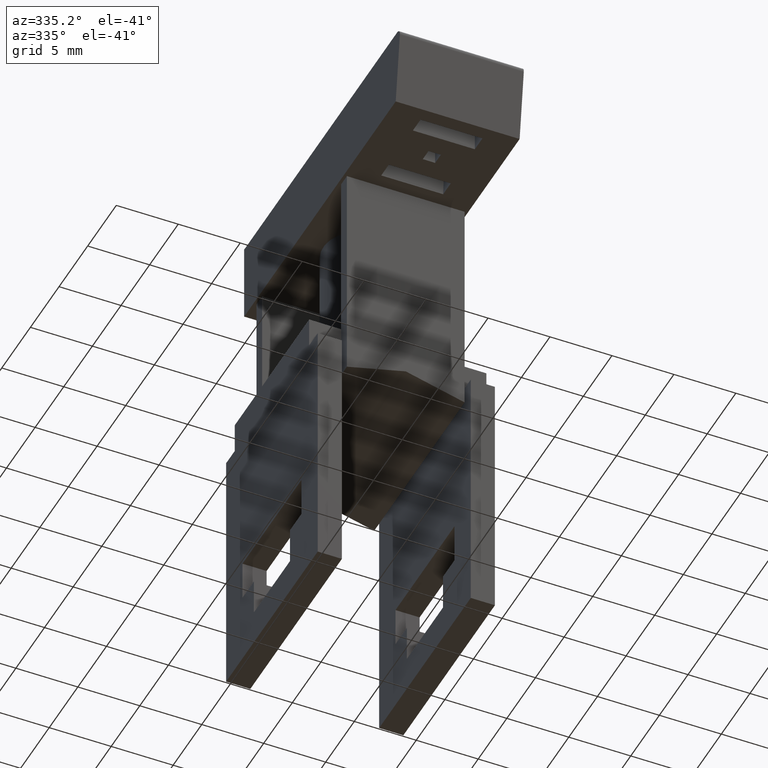
[diagram: clean part render]
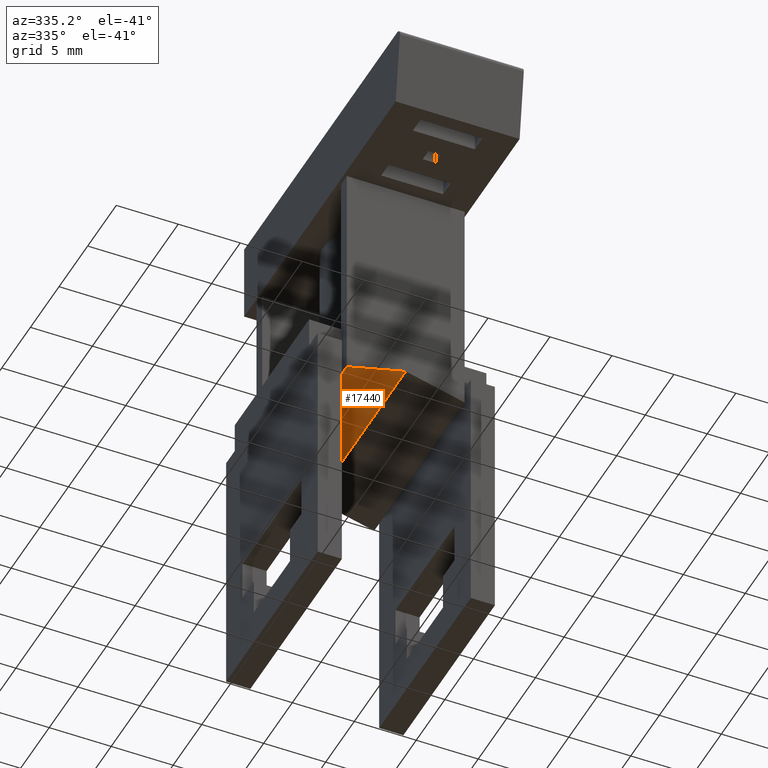
[diagram: same view with one face highlighted and labeled with its STEP entity id]
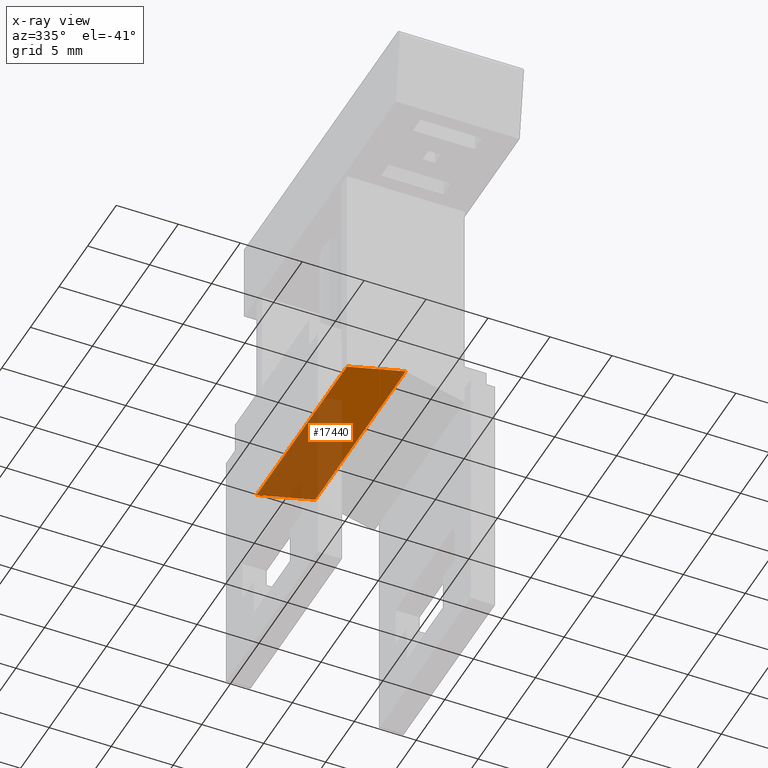
[diagram: x-ray of the same camera — body ghosted, the highlighted face saturated]
A machine part, auxiliary view. The second image highlights one B-rep face of the part: STEP entity #17440.
The next image is the same camera in x-ray: the body ghosted, the highlighted face saturated — about 59% of this face is hidden behind the body in this view.
In plain terms, the highlighted planar face has unit normal (-0.2588, 0, 0.9659).
Its self-contained STEP definition (entity closure, byte-faithful):
#14580=CARTESIAN_POINT('',(-26.7056108469937,-5.02724133595218,7.9));
#14590=VERTEX_POINT('',#14580);
#14620=CARTESIAN_POINT('',(-2.82981630304777,1.37025853074952,7.9));
#14630=DIRECTION('',(-0.965925826289069,-0.25881904510252,
2.53514923777986E-32));
#14640=VECTOR('',#14630,1.);
#14650=LINE('',#14620,#14640);
#14660=CARTESIAN_POINT('',(-31.4556108469937,-6.30000000000001,7.9));
#14670=VERTEX_POINT('',#14660);
#14680=EDGE_CURVE('',#14590,#14670,#14650,.T.);
#15590=CARTESIAN_POINT('',(-26.7056108469937,-5.02724133595218,-7.9));
#15600=VERTEX_POINT('',#15590);
#15630=CARTESIAN_POINT('',(-26.7056108469937,-5.02724133595218,
7.88860905221012E-31));
#15640=DIRECTION('',(2.62457961965826E-32,0.,-1.));
#15650=VECTOR('',#15640,1.);
#15660=LINE('',#15630,#15650);
#15670=EDGE_CURVE('',#14590,#15600,#15660,.T.);
#17210=CARTESIAN_POINT('',(-26.7056108469937,-5.02724133595218,
10.8000024));
#17220=DIRECTION('',(-0.258819045102521,0.965925826289068,
-6.79291190955488E-33));
#17230=DIRECTION('',(-0.965925826289068,-0.258819045102521,
2.53514923777986E-32));
#17240=AXIS2_PLACEMENT_3D('',#17210,#17220,#17230);
#17250=PLANE('',#17240);
#17260=ORIENTED_EDGE('',*,*,#14680,.T.);
#17270=ORIENTED_EDGE('',*,*,#15670,.F.);
#17280=CARTESIAN_POINT('',(-26.835020369545,-5.06191651301268,-7.9));
#17290=DIRECTION('',(-0.965925826289069,-0.25881904510252,
2.53514923777986E-32));
#17300=VECTOR('',#17290,1.);
#17310=LINE('',#17280,#17300);
#17320=CARTESIAN_POINT('',(-31.4556108469937,-6.30000000000001,-7.9));
#17330=VERTEX_POINT('',#17320);
#17340=EDGE_CURVE('',#15600,#17330,#17310,.T.);
#17350=ORIENTED_EDGE('',*,*,#17340,.F.);
#17360=CARTESIAN_POINT('',(-31.4556108469937,-6.3,7.88860905221012E-31))
;
#17370=DIRECTION('',(-2.62457961965826E-32,0.,1.));
#17380=VECTOR('',#17370,1.);
#17390=LINE('',#17360,#17380);
#17400=EDGE_CURVE('',#17330,#14670,#17390,.T.);
#17410=ORIENTED_EDGE('',*,*,#17400,.F.);
#17420=EDGE_LOOP('',(#17410,#17350,#17270,#17260));
#17430=FACE_OUTER_BOUND('',#17420,.T.);
#17440=ADVANCED_FACE('',(#17430),#17250,.F.);